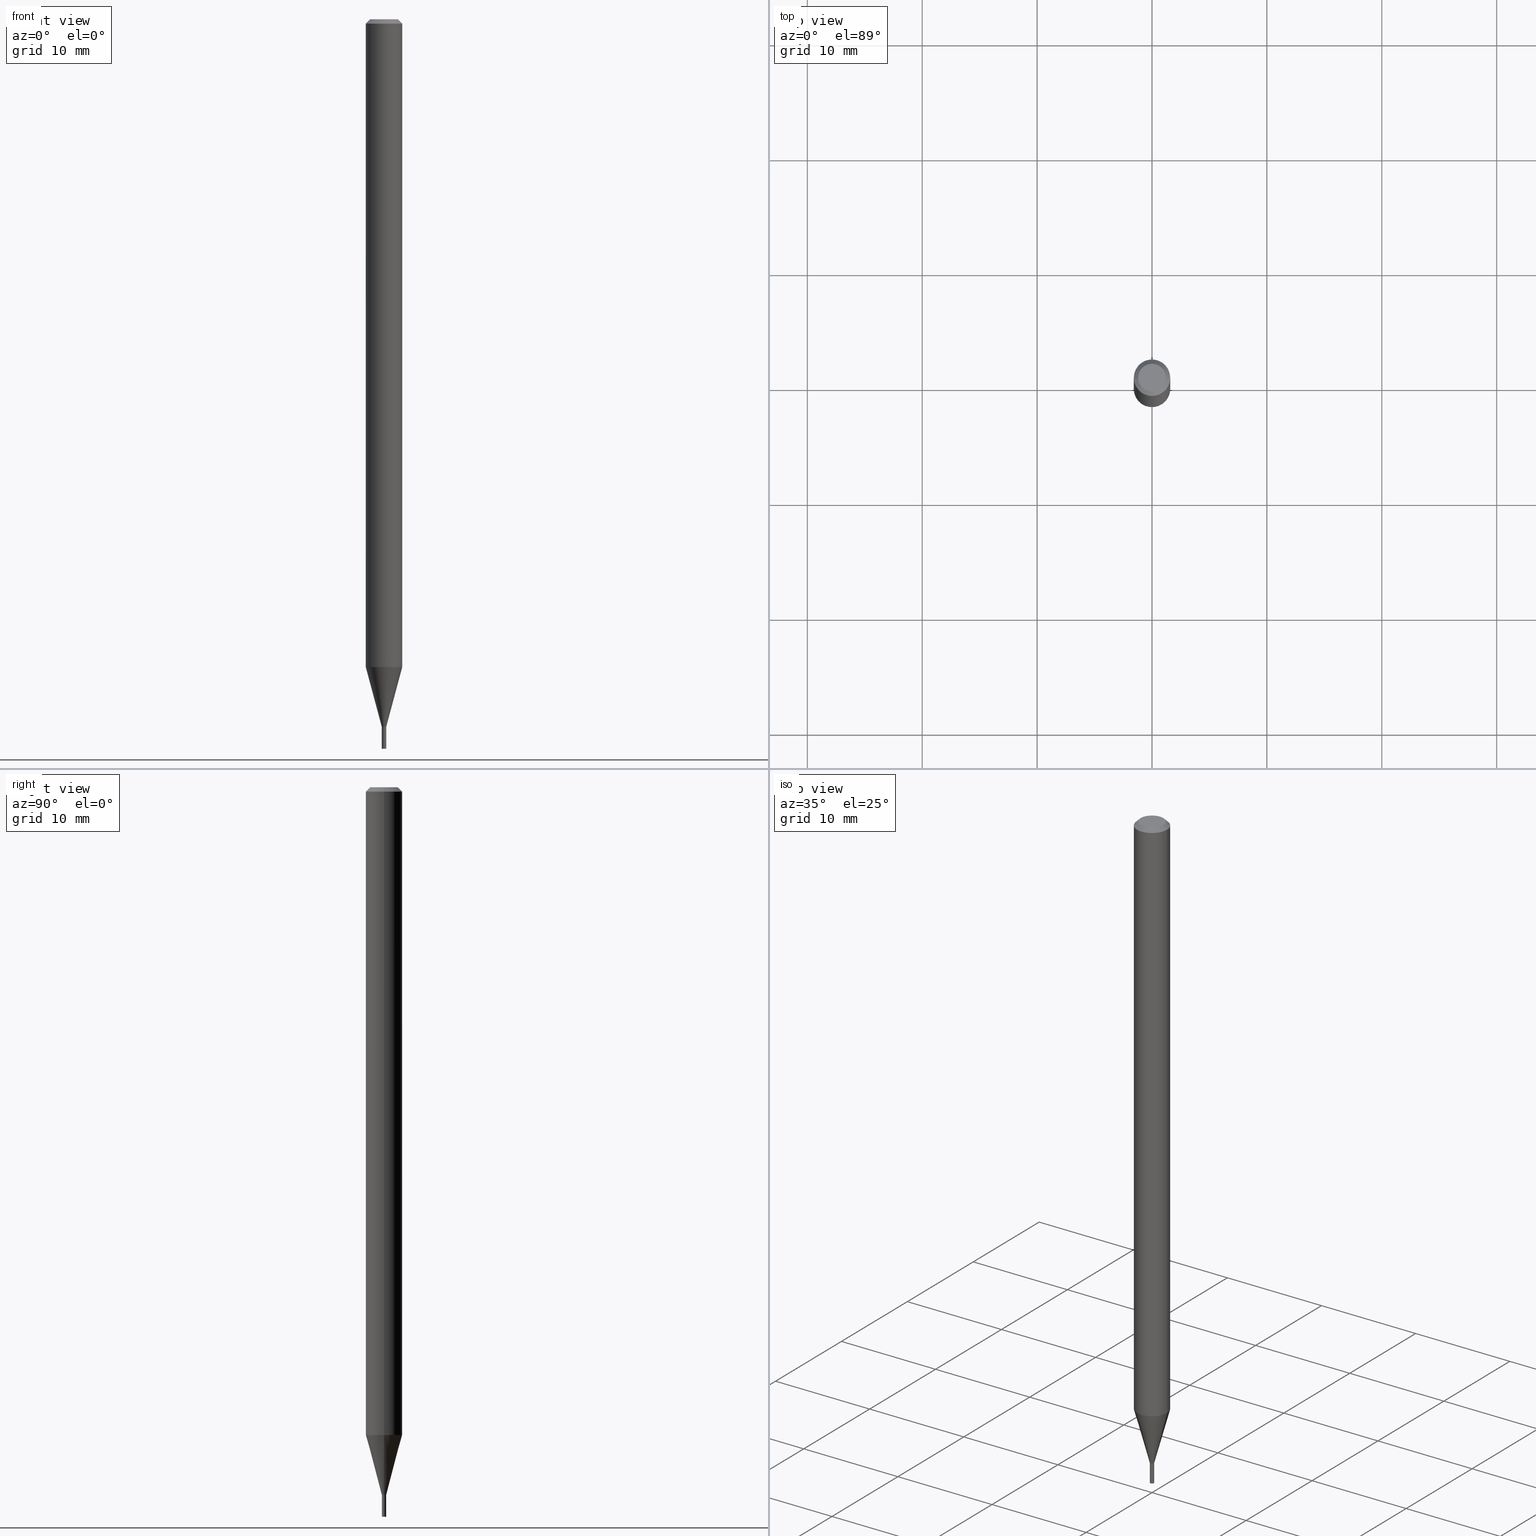
[diagram: canonical four-view strip — front | top / right | iso, engineering-drawing reading convention]
A machine part, canonical four-view strip (front | top / right | iso — engineering-drawing reading convention). The complete STEP part file that produces these views, byte-faithful:
ISO-10303-21;
HEADER;
FILE_DESCRIPTION (( 'STEP AP203' ),
    '1' );
FILE_NAME ('01228.STEP',
    '2024-03-20T00:17:09',
    ( '' ),
    ( '' ),
    'SwSTEP 2.0',
    'SolidWorks 2023',
    '' );
FILE_SCHEMA (( 'CONFIG_CONTROL_DESIGN' ));
ENDSEC;

DATA;
#1 = ORIENTED_EDGE ( 'NONE', *, *, #415, .T. ) ;
#2 = CALENDAR_DATE ( 2024, 19, 3 ) ;
#3 = CONICAL_SURFACE ( 'NONE', #172, 0.006999999999999999278, 0.7853981633974718157 ) ;
#4 = DIRECTION ( 'NONE',  ( -2.445468806185136597E-29, 3.491481338843145583E-15, 1.000000000000000000 ) ) ;
#5 = DIRECTION ( 'NONE',  ( 1.000000000000000000, -6.982962677686267499E-15, 5.108144071313017768E-29 ) ) ;
#6 = DIRECTION ( 'NONE',  ( -2.438088387897960049E-29, 3.491481338843145188E-15, 1.000000000000000000 ) ) ;
#7 = ORIENTED_EDGE ( 'NONE', *, *, #80, .F. ) ;
#8 = LOCAL_TIME ( 20, 17, 9.000000000000000000, #67 ) ;
#9 = DIRECTION ( 'NONE',  ( -2.445468806185136597E-29, 3.491481338843145583E-15, 1.000000000000000000 ) ) ;
#10 = ORIENTED_EDGE ( 'NONE', *, *, #424, .F. ) ;
#11 = DIRECTION ( 'NONE',  ( -2.445468806185136597E-29, 3.491481338843145583E-15, 1.000000000000000000 ) ) ;
#12 = EDGE_LOOP ( 'NONE', ( #216, #313, #248, #372 ) ) ;
#13 = DATE_AND_TIME ( #16, #390 ) ;
#14 =( NAMED_UNIT ( * ) PLANE_ANGLE_UNIT ( ) SI_UNIT ( $, .RADIAN. ) );
#15 = ORIENTED_EDGE ( 'NONE', *, *, #288, .F. ) ;
#16 = CALENDAR_DATE ( 2024, 19, 3 ) ;
#17 = AXIS2_PLACEMENT_3D ( 'NONE', #225, #9, #5 ) ;
#18 = VERTEX_POINT ( 'NONE', #439 ) ;
#19 = DIRECTION ( 'NONE',  ( -2.445468806185136597E-29, 3.491481338843145583E-15, 1.000000000000000000 ) ) ;
#20 = EDGE_LOOP ( 'NONE', ( #50, #311, #451, #189 ) ) ;
#21 = ADVANCED_FACE ( 'NONE', ( #404 ), #365, .F. ) ;
#22 = ADVANCED_FACE ( 'NONE', ( #301 ), #437, .T. ) ;
#23 = FACE_OUTER_BOUND ( 'NONE', #233, .T. ) ;
#24 = VERTEX_POINT ( 'NONE', #41 ) ;
#25 = CARTESIAN_POINT ( 'NONE',  ( 3.316907271900976096E-16, 0.04749999999999999362, 1.252124384068252049E-15 ) ) ;
#26 = CLOSED_SHELL ( 'NONE', ( #46, #351, #217, #185, #22, #453, #153, #432, #270, #37, #303, #403 ) ) ;
#27 = AXIS2_PLACEMENT_3D ( 'NONE', #205, #69, #287 ) ;
#28 = DIRECTION ( 'NONE',  ( -1.000000000000000000, 6.982962677686265922E-15, -4.876176775795935793E-29 ) ) ;
#29 = CARTESIAN_POINT ( 'NONE',  ( -0.006999999999999999278, -8.414455028017310105E-15, -2.425000000000000711 ) ) ;
#30 = DIRECTION ( 'NONE',  ( 1.000000000000000000, -6.982962677686266711E-15, 0.000000000000000000 ) ) ;
#31 = DIRECTION ( 'NONE',  ( -2.445468806185136597E-29, 3.491481338843145583E-15, 1.000000000000000000 ) ) ;
#32 = CC_DESIGN_DATE_AND_TIME_ASSIGNMENT ( #33, #176, ( #405 ) ) ;
#33 = DATE_AND_TIME ( #215, #8 ) ;
#34 = APPROVAL ( #106, 'UNSPECIFIED' ) ;
#35 = DIRECTION ( 'NONE',  ( -2.445468806185136597E-29, 3.491481338843145583E-15, 1.000000000000000000 ) ) ;
#36 = CIRCLE ( 'NONE', #111, 0.007499999999999920793 ) ;
#37 = ADVANCED_FACE ( 'NONE', ( #399 ), #72, .F. ) ;
#38 = LINE ( 'NONE', #148, #438 ) ;
#39 = MECHANICAL_CONTEXT ( 'NONE', #71, 'mechanical' ) ;
#40 = DIRECTION ( 'NONE',  ( 1.000000000000000000, -6.982962677686333764E-15, 0.000000000000000000 ) ) ;
#41 = CARTESIAN_POINT ( 'NONE',  ( -0.007500000000000195746, -8.411805800843198115E-15, -2.424500000000000544 ) ) ;
#42 = DIRECTION ( 'NONE',  ( -2.445468806185136877E-29, 3.491481338843145188E-15, 1.000000000000000000 ) ) ;
#43 = AXIS2_PLACEMENT_3D ( 'NONE', #280, #427, #30 ) ;
#44 = AXIS2_PLACEMENT_3D ( 'NONE', #349, #410, #383 ) ;
#45 = EDGE_LOOP ( 'NONE', ( #305, #10 ) ) ;
#46 = ADVANCED_FACE ( 'NONE', ( #147 ), #218, .F. ) ;
#47 = CYLINDRICAL_SURFACE ( 'NONE', #98, 0.007500000000000058703 ) ;
#48 = EDGE_LOOP ( 'NONE', ( #261, #95, #54, #338 ) ) ;
#49 = CARTESIAN_POINT ( 'NONE',  ( -0.04749999999999999362, 3.578768372314260303E-16, 2.835939495326600426E-15 ) ) ;
#50 = ORIENTED_EDGE ( 'NONE', *, *, #240, .T. ) ;
#51 = EDGE_CURVE ( 'NONE', #18, #75, #374, .T. ) ;
#52 = VECTOR ( 'NONE', #418, 39.37007874015748143 ) ;
#53 = CC_DESIGN_PERSON_AND_ORGANIZATION_ASSIGNMENT ( #433, #396, ( #405 ) ) ;
#54 = ORIENTED_EDGE ( 'NONE', *, *, #391, .F. ) ;
#55 = CC_DESIGN_APPROVAL ( #295, ( #323 ) ) ;
#56 = DIRECTION ( 'NONE',  ( -2.445468806185136597E-29, 3.491481338843145583E-15, 1.000000000000000000 ) ) ;
#57 = ORIENTED_EDGE ( 'NONE', *, *, #51, .T. ) ;
#58 = PERSON_AND_ORGANIZATION ( #94, #325 ) ;
#59 = DIRECTION ( 'NONE',  ( -2.445468806185136597E-29, 3.491481338843145583E-15, 1.000000000000000000 ) ) ;
#60 = DIRECTION ( 'NONE',  ( -2.445468806185136597E-29, 3.491481338843145583E-15, 1.000000000000000000 ) ) ;
#61 = AXIS2_PLACEMENT_3D ( 'NONE', #202, #449, #421 ) ;
#62 = DIRECTION ( 'NONE',  ( 1.000000000000000000, -6.982962677686267499E-15, 5.108144071313017768E-29 ) ) ;
#63 = DIRECTION ( 'NONE',  ( 1.000000000000000000, -6.982962677686266711E-15, 4.876176775795935793E-29 ) ) ;
#64 = DIRECTION ( 'NONE',  ( 1.000000000000000000, -6.982962677686266711E-15, 0.000000000000000000 ) ) ;
#65 = CONICAL_SURFACE ( 'NONE', #335, 0.006999999999999999278, 0.7853981633974718157 ) ;
#66 = CC_DESIGN_SECURITY_CLASSIFICATION ( #213, ( #323 ) ) ;
#67 = COORDINATED_UNIVERSAL_TIME_OFFSET ( 5, 0, .BEHIND. ) ;
#68 = MANIFOLD_SOLID_BREP ( 'Body-Move/Copy2[1]', #321 ) ;
#69 = DIRECTION ( 'NONE',  ( -2.445468806185136597E-29, 3.491481338843145583E-15, 1.000000000000000000 ) ) ;
#70 = APPLICATION_CONTEXT ( 'configuration controlled 3d designs of mechanical parts and assemblies' ) ;
#71 = APPLICATION_CONTEXT ( 'configuration controlled 3d designs of mechanical parts and assemblies' ) ;
#72 = PLANE ( 'NONE',  #378 ) ;
#73 = CYLINDRICAL_SURFACE ( 'NONE', #380, 0.007499999999999999722 ) ;
#74 = AXIS2_PLACEMENT_3D ( 'NONE', #135, #137, #426 ) ;
#75 = VERTEX_POINT ( 'NONE', #352 ) ;
#76 = DIRECTION ( 'NONE',  ( -2.445468806185136877E-29, 3.491481338843145188E-15, 1.000000000000000000 ) ) ;
#77 = VERTEX_POINT ( 'NONE', #423 ) ;
#78 = ORIENTED_EDGE ( 'NONE', *, *, #286, .T. ) ;
#79 = FACE_OUTER_BOUND ( 'NONE', #12, .T. ) ;
#80 = EDGE_CURVE ( 'NONE', #306, #120, #282, .T. ) ;
#81 = VECTOR ( 'NONE', #42, 39.37007874015748143 ) ;
#82 = ORIENTED_EDGE ( 'NONE', *, *, #422, .T. ) ;
#83 = FACE_OUTER_BOUND ( 'NONE', #223, .T. ) ;
#84 = ORIENTED_EDGE ( 'NONE', *, *, #373, .T. ) ;
#85 = EDGE_CURVE ( 'NONE', #199, #128, #393, .T. ) ;
#86 = ORIENTED_EDGE ( 'NONE', *, *, #170, .T. ) ;
#87 = CARTESIAN_POINT ( 'NONE',  ( 5.930261854998957144E-29, -8.466842246694628363E-15, -2.425000000000000266 ) ) ;
#88 = VECTOR ( 'NONE', #253, 39.37007874015748143 ) ;
#89 = ORIENTED_EDGE ( 'NONE', *, *, #309, .T. ) ;
#90 = DIRECTION ( 'NONE',  ( 1.000000000000000000, -6.982962677686212279E-15, 0.000000000000000000 ) ) ;
#91 = VERTEX_POINT ( 'NONE', #395 ) ;
#92 = FACE_OUTER_BOUND ( 'NONE', #367, .T. ) ;
#93 = EDGE_CURVE ( 'NONE', #128, #120, #285, .T. ) ;
#94 = PERSON ( 'UNSPECIFIED', 'UNSPECIFIED', 'UNSPECIFIED', ('UNSPECIFIED'), ('UNSPECIFIED'), ('UNSPECIFIED') ) ;
#95 = ORIENTED_EDGE ( 'NONE', *, *, #207, .T. ) ;
#96 = DATE_AND_TIME ( #204, #382 ) ;
#97 = CARTESIAN_POINT ( 'NONE',  ( 0.007500000000000058703, -5.237222008264741202E-17, 3.657132581846980659E-31 ) ) ;
#98 = AXIS2_PLACEMENT_3D ( 'NONE', #377, #413, #168 ) ;
#99 = EDGE_LOOP ( 'NONE', ( #1, #275, #7, #138 ) ) ;
#100 = SECURITY_CLASSIFICATION_LEVEL ( 'unclassified' ) ;
#101 = CARTESIAN_POINT ( 'NONE',  ( 5.929039120595864343E-29, -8.465096506025207649E-15, -2.424500000000000544 ) ) ;
#102 = EDGE_CURVE ( 'NONE', #157, #238, #279, .T. ) ;
#103 = CARTESIAN_POINT ( 'NONE',  ( -0.007499999999999920793, -8.413551541512620408E-15, -2.425000000000000266 ) ) ;
#104 = CIRCLE ( 'NONE', #43, 0.06250000000000000000 ) ;
#105 = LOCAL_TIME ( 20, 17, 9.000000000000000000, #300 ) ;
#106 = APPROVAL_STATUS ( 'not_yet_approved' ) ;
#107 = CARTESIAN_POINT ( 'NONE',  ( 6.194428952736783458E-29, -8.613054816532157721E-15, -2.500000000000000000 ) ) ;
#108 = DIRECTION ( 'NONE',  ( -2.445468806185136597E-29, 3.491481338843145583E-15, 1.000000000000000000 ) ) ;
#109 = DIRECTION ( 'NONE',  ( -0.7071067811865642261, 7.493145998870414114E-15, 0.7071067811865309194 ) ) ;
#110 = AXIS2_PLACEMENT_3D ( 'NONE', #107, #182, #291 ) ;
#111 = AXIS2_PLACEMENT_3D ( 'NONE', #87, #234, #381 ) ;
#112 = APPROVAL_PERSON_ORGANIZATION ( #58, #337, #249 ) ;
#113 = DIRECTION ( 'NONE',  ( 1.000000000000000000, -6.982962677686333764E-15, 0.000000000000000000 ) ) ;
#114 = ORIENTED_EDGE ( 'NONE', *, *, #170, .F. ) ;
#115 = DATE_AND_TIME ( #2, #105 ) ;
#116 = CC_DESIGN_PERSON_AND_ORGANIZATION_ASSIGNMENT ( #296, #400, ( #394 ) ) ;
#117 = EDGE_CURVE ( 'NONE', #91, #18, #362, .T. ) ;
#118 = FACE_OUTER_BOUND ( 'NONE', #144, .T. ) ;
#119 = DIRECTION ( 'NONE',  ( 1.000000000000000000, -6.982962677686267499E-15, 4.876176775795936353E-29 ) ) ;
#120 = VERTEX_POINT ( 'NONE', #360 ) ;
#121 = ADVANCED_BREP_SHAPE_REPRESENTATION ( '01228', ( #68, #386, #447 ), #159 ) ;
#122 = AXIS2_PLACEMENT_3D ( 'NONE', #310, #59, #450 ) ;
#123 = ORIENTED_EDGE ( 'NONE', *, *, #288, .T. ) ;
#124 = FACE_OUTER_BOUND ( 'NONE', #343, .T. ) ;
#125 = DIRECTION ( 'NONE',  ( 1.000000000000000000, -6.982962677686262766E-15, 0.000000000000000000 ) ) ;
#126 = EDGE_LOOP ( 'NONE', ( #267, #446 ) ) ;
#127 = CARTESIAN_POINT ( 'NONE',  ( 0.006999999999999999278, -8.515722985438433619E-15, -2.425000000000000711 ) ) ;
#128 = VERTEX_POINT ( 'NONE', #318 ) ;
#129 = CARTESIAN_POINT ( 'NONE',  ( 0.007500000000000195746, -8.517468726107855911E-15, -2.424500000000000544 ) ) ;
#130 = AXIS2_PLACEMENT_3D ( 'NONE', #388, #60, #169 ) ;
#131 = ORIENTED_EDGE ( 'NONE', *, *, #342, .T. ) ;
#132 = DATE_AND_TIME ( #460, #315 ) ;
#133 = ADVANCED_FACE ( 'NONE', ( #210 ), #246, .F. ) ;
#134 = CARTESIAN_POINT ( 'NONE',  ( -0.007499999999999999722, -8.544482091719238697E-15, -2.425000000000000266 ) ) ;
#135 = CARTESIAN_POINT ( 'NONE',  ( 0.000000000000000000, 0.000000000000000000, 0.000000000000000000 ) ) ;
#136 = PERSON_AND_ORGANIZATION ( #94, #325 ) ;
#137 = DIRECTION ( 'NONE',  ( -2.445468806185136597E-29, 3.491481338843145583E-15, 1.000000000000000000 ) ) ;
#138 = ORIENTED_EDGE ( 'NONE', *, *, #200, .F. ) ;
#139 = CARTESIAN_POINT ( 'NONE',  ( -0.007499999999999920793, -7.859816681046961003E-15, -2.425000000000000266 ) ) ;
#140 = CIRCLE ( 'NONE', #463, 0.06250000000000000000 ) ;
#141 = EDGE_CURVE ( 'NONE', #411, #229, #402, .T. ) ;
#142 = DIRECTION ( 'NONE',  ( -2.445468806185136877E-29, 3.491481338843145188E-15, 1.000000000000000000 ) ) ;
#143 = DIRECTION ( 'NONE',  ( -2.445468806185136597E-29, 3.491481338843145583E-15, 1.000000000000000000 ) ) ;
#144 = EDGE_LOOP ( 'NONE', ( #161, #348, #268, #82 ) ) ;
#145 = CIRCLE ( 'NONE', #408, 0.06250000000000000000 ) ;
#146 = APPROVAL_DATE_TIME ( #115, #34 ) ;
#147 = FACE_OUTER_BOUND ( 'NONE', #412, .T. ) ;
#148 = CARTESIAN_POINT ( 'NONE',  ( -0.06250000000000000000, 3.840629472727444916E-16, -0.01499999999999999944 ) ) ;
#149 = ORIENTED_EDGE ( 'NONE', *, *, #324, .T. ) ;
#150 = CARTESIAN_POINT ( 'NONE',  ( 0.000000000000000000, 0.000000000000000000, 0.000000000000000000 ) ) ;
#151 = VECTOR ( 'NONE', #76, 39.37007874015748143 ) ;
#152 = APPLICATION_PROTOCOL_DEFINITION ( 'international standard', 'config_control_design', 1994, #70 ) ;
#153 = ADVANCED_FACE ( 'NONE', ( #92 ), #459, .T. ) ;
#154 = CONICAL_SURFACE ( 'NONE', #363, 0.007499999999999920793, 0.2617993877991506846 ) ;
#155 = EDGE_CURVE ( 'NONE', #128, #77, #140, .T. ) ;
#156 = LINE ( 'NONE', #406, #211 ) ;
#157 = VERTEX_POINT ( 'NONE', #320 ) ;
#158 = ORIENTED_EDGE ( 'NONE', *, *, #373, .F. ) ;
#159 =( GEOMETRIC_REPRESENTATION_CONTEXT ( 3 ) GLOBAL_UNCERTAINTY_ASSIGNED_CONTEXT ( ( #262 ) ) GLOBAL_UNIT_ASSIGNED_CONTEXT ( ( #339, #14, #444 ) ) REPRESENTATION_CONTEXT ( 'NONE', 'WORKASPACE' ) );
#160 = CARTESIAN_POINT ( 'NONE',  ( 5.930261854998957144E-29, -8.466842246694629941E-15, -2.425000000000000711 ) ) ;
#161 = ORIENTED_EDGE ( 'NONE', *, *, #324, .F. ) ;
#162 = ORIENTED_EDGE ( 'NONE', *, *, #155, .T. ) ;
#163 = COORDINATED_UNIVERSAL_TIME_OFFSET ( 5, 0, .BEHIND. ) ;
#164 = ORIENTED_EDGE ( 'NONE', *, *, #342, .F. ) ;
#165 = CARTESIAN_POINT ( 'NONE',  ( 0.007499999999999920793, -8.519214466777275048E-15, -2.425000000000000266 ) ) ;
#166 = ADVANCED_FACE ( 'NONE', ( #428 ), #243, .T. ) ;
#167 = AXIS2_PLACEMENT_3D ( 'NONE', #334, #435, #361 ) ;
#168 = DIRECTION ( 'NONE',  ( 1.000000000000000000, -6.982962677686266711E-15, 4.876176775795935793E-29 ) ) ;
#169 = DIRECTION ( 'NONE',  ( 1.000000000000000000, -6.982962677686267499E-15, 4.876176775795936353E-29 ) ) ;
#170 = EDGE_CURVE ( 'NONE', #120, #306, #104, .T. ) ;
#171 = CARTESIAN_POINT ( 'NONE',  ( 0.000000000000000000, 0.000000000000000000, 0.000000000000000000 ) ) ;
#172 = AXIS2_PLACEMENT_3D ( 'NONE', #222, #35, #40 ) ;
#173 = LINE ( 'NONE', #326, #151 ) ;
#174 = AXIS2_PLACEMENT_3D ( 'NONE', #193, #56, #190 ) ;
#175 = CARTESIAN_POINT ( 'NONE',  ( 5.237222008270629925E-17, 0.007499999999991533405, -2.425000000000000266 ) ) ;
#176 = DATE_TIME_ROLE ( 'creation_date' ) ;
#177 = DIRECTION ( 'NONE',  ( -2.445468806185136597E-29, 3.491481338843145583E-15, 1.000000000000000000 ) ) ;
#178 = ORIENTED_EDGE ( 'NONE', *, *, #80, .T. ) ;
#179 = EDGE_CURVE ( 'NONE', #24, #238, #425, .T. ) ;
#180 = ORIENTED_EDGE ( 'NONE', *, *, #179, .T. ) ;
#181 = AXIS2_PLACEMENT_3D ( 'NONE', #356, #177, #64 ) ;
#182 = DIRECTION ( 'NONE',  ( -2.438088387897960049E-29, 3.491481338843145188E-15, 1.000000000000000000 ) ) ;
#183 = DIRECTION ( 'NONE',  ( 1.000000000000000000, -6.982962677686268288E-15, 0.000000000000000000 ) ) ;
#184 = DIRECTION ( 'NONE',  ( 1.000000000000000000, 0.000000000000000000, 0.000000000000000000 ) ) ;
#185 = ADVANCED_FACE ( 'NONE', ( #209 ), #354, .T. ) ;
#186 = AXIS2_PLACEMENT_3D ( 'NONE', #434, #108, #188 ) ;
#187 = DIRECTION ( 'NONE',  ( 1.000000000000000000, -6.982962677686265922E-15, 4.876176775795935793E-29 ) ) ;
#188 = DIRECTION ( 'NONE',  ( 1.000000000000000000, -6.982962677686212279E-15, 0.000000000000000000 ) ) ;
#189 = ORIENTED_EDGE ( 'NONE', *, *, #452, .F. ) ;
#190 = DIRECTION ( 'NONE',  ( 1.000000000000000000, -6.982962677686268288E-15, 0.000000000000000000 ) ) ;
#191 = EDGE_LOOP ( 'NONE', ( #158, #123, #178, #384 ) ) ;
#192 = CARTESIAN_POINT ( 'NONE',  ( 0.007499999999999999722, -5.237222008264700526E-17, 3.657132581846952195E-31 ) ) ;
#193 = CARTESIAN_POINT ( 'NONE',  ( 6.113672015462842613E-29, -8.728703347107864943E-15, -2.500000000000000000 ) ) ;
#194 = ORIENTED_EDGE ( 'NONE', *, *, #207, .F. ) ;
#195 = VECTOR ( 'NONE', #341, 39.37007874015748143 ) ;
#196 = VERTEX_POINT ( 'NONE', #29 ) ;
#197 = FACE_OUTER_BOUND ( 'NONE', #191, .T. ) ;
#198 =( LENGTH_UNIT ( ) NAMED_UNIT ( * ) SI_UNIT ( $, .METRE. ) );
#199 = VERTEX_POINT ( 'NONE', #139 ) ;
#200 = EDGE_CURVE ( 'NONE', #77, #306, #173, .T. ) ;
#201 = LINE ( 'NONE', #127, #345 ) ;
#202 = CARTESIAN_POINT ( 'NONE',  ( 5.930261854998957144E-29, -8.466842246694629941E-15, -2.425000000000000711 ) ) ;
#203 = VECTOR ( 'NONE', #227, 39.37007874015748854 ) ;
#204 = CALENDAR_DATE ( 2024, 19, 3 ) ;
#205 = CARTESIAN_POINT ( 'NONE',  ( 6.113672015462842613E-29, -8.728703347107864943E-15, -2.500000000000000000 ) ) ;
#206 = DIRECTION ( 'NONE',  ( -1.000000000000000000, 6.982962677686266711E-15, 0.000000000000000000 ) ) ;
#207 = EDGE_CURVE ( 'NONE', #91, #409, #241, .T. ) ;
#208 = PERSON_AND_ORGANIZATION ( #94, #325 ) ;
#209 = FACE_OUTER_BOUND ( 'NONE', #99, .T. ) ;
#210 = FACE_OUTER_BOUND ( 'NONE', #264, .T. ) ;
#211 = VECTOR ( 'NONE', #109, 39.37007874015748143 ) ;
#212 = DIRECTION ( 'NONE',  ( 2.438088387897960049E-29, -3.491481338843145188E-15, -1.000000000000000000 ) ) ;
#213 = SECURITY_CLASSIFICATION ( '', '', #100 ) ;
#214 = APPROVAL_STATUS ( 'not_yet_approved' ) ;
#215 = CALENDAR_DATE ( 2024, 19, 3 ) ;
#216 = ORIENTED_EDGE ( 'NONE', *, *, #355, .F. ) ;
#217 = ADVANCED_FACE ( 'NONE', ( #197 ), #322, .T. ) ;
#218 = CYLINDRICAL_SURFACE ( 'NONE', #236, 0.007500000000000058703 ) ;
#219 = CARTESIAN_POINT ( 'NONE',  ( 0.006999999999999999278, -8.515722985438433619E-15, -2.425000000000000711 ) ) ;
#220 = ORIENTED_EDGE ( 'NONE', *, *, #102, .F. ) ;
#221 = VECTOR ( 'NONE', #319, 39.37007874015748143 ) ;
#222 = CARTESIAN_POINT ( 'NONE',  ( 5.930261854998957144E-29, -8.466842246694629941E-15, -2.425000000000000711 ) ) ;
#223 = EDGE_LOOP ( 'NONE', ( #448, #242, #78, #379 ) ) ;
#224 = DIRECTION ( 'NONE',  ( 0.000000000000000000, 0.000000000000000000, 1.000000000000000000 ) ) ;
#225 = CARTESIAN_POINT ( 'NONE',  ( -6.935201572049625974E-44, 9.901629826021081830E-30, 2.835939495326602793E-15 ) ) ;
#226 = EDGE_LOOP ( 'NONE', ( #194, #375, #57, #164 ) ) ;
#227 = DIRECTION ( 'NONE',  ( 0.7071067811864806263, -7.319954787623028853E-15, -0.7071067811866141861 ) ) ;
#228 = AXIS2_PLACEMENT_3D ( 'NONE', #302, #369, #183 ) ;
#229 = VERTEX_POINT ( 'NONE', #307 ) ;
#230 = CARTESIAN_POINT ( 'NONE',  ( 5.930261854998957144E-29, -8.466842246694628363E-15, -2.425000000000000266 ) ) ;
#231 = EDGE_LOOP ( 'NONE', ( #340, #416, #271, #443 ) ) ;
#232 = DIRECTION ( 'NONE',  ( -1.000000000000000000, 6.982962677686265922E-15, -4.876176775795935793E-29 ) ) ;
#233 = EDGE_LOOP ( 'NONE', ( #15, #347, #89, #86 ) ) ;
#234 = DIRECTION ( 'NONE',  ( -2.445468806185136597E-29, 3.491481338843145583E-15, 1.000000000000000000 ) ) ;
#235 = AXIS2_PLACEMENT_3D ( 'NONE', #401, #368, #255 ) ;
#236 = AXIS2_PLACEMENT_3D ( 'NONE', #332, #4, #263 ) ;
#237 = DIRECTION ( 'NONE',  ( -2.445468806185136597E-29, 3.491481338843145583E-15, 1.000000000000000000 ) ) ;
#238 = VERTEX_POINT ( 'NONE', #129 ) ;
#239 = COORDINATED_UNIVERSAL_TIME_OFFSET ( 5, 0, .BEHIND. ) ;
#240 = EDGE_CURVE ( 'NONE', #331, #196, #292, .T. ) ;
#241 = LINE ( 'NONE', #458, #52 ) ;
#242 = ORIENTED_EDGE ( 'NONE', *, *, #387, .T. ) ;
#243 = CYLINDRICAL_SURFACE ( 'NONE', #130, 0.007499999999999999722 ) ;
#244 = AXIS2_PLACEMENT_3D ( 'NONE', #312, #269, #206 ) ;
#245 = DIMENSIONAL_EXPONENTS ( 1.000000000000000000, 0.000000000000000000, 0.000000000000000000, 0.000000000000000000, 0.000000000000000000, 0.000000000000000000, 0.000000000000000000 ) ;
#246 = PLANE ( 'NONE',  #357 ) ;
#247 = PRODUCT_DEFINITION_SHAPE ( 'NONE', 'NONE',  #405 ) ;
#248 = ORIENTED_EDGE ( 'NONE', *, *, #452, .T. ) ;
#249 = APPROVAL_ROLE ( '' ) ;
#250 = DIRECTION ( 'NONE',  ( 1.000000000000000000, -6.982962677686214646E-15, 0.000000000000000000 ) ) ;
#251 = DIRECTION ( 'NONE',  ( -2.445468806185136877E-29, 3.491481338843145188E-15, 1.000000000000000000 ) ) ;
#252 = EDGE_CURVE ( 'NONE', #157, #199, #36, .T. ) ;
#253 = DIRECTION ( 'NONE',  ( -0.2588190451025219607, 5.211531920934553408E-15, 0.9659258262890679791 ) ) ;
#254 = PERSON_AND_ORGANIZATION ( #94, #325 ) ;
#255 = DIRECTION ( 'NONE',  ( 1.000000000000000000, -6.982962677686212279E-15, 0.000000000000000000 ) ) ;
#256 = CARTESIAN_POINT ( 'NONE',  ( 0.06250000000000000000, -4.811533449433679005E-16, -0.01499999999999999944 ) ) ;
#257 = APPLICATION_PROTOCOL_DEFINITION ( 'international standard', 'config_control_design', 1994, #71 ) ;
#258 = CC_DESIGN_DATE_AND_TIME_ASSIGNMENT ( #132, #385, ( #213 ) ) ;
#259 = APPROVAL_PERSON_ORGANIZATION ( #329, #295, #398 ) ;
#260 = CARTESIAN_POINT ( 'NONE',  ( 5.930261854998957144E-29, -8.466842246694629941E-15, -2.425000000000000711 ) ) ;
#261 = ORIENTED_EDGE ( 'NONE', *, *, #466, .T. ) ;
#262 = UNCERTAINTY_MEASURE_WITH_UNIT (LENGTH_MEASURE( 1.000000000000000082E-05 ), #339, 'distance_accuracy_value', 'NONE');
#263 = DIRECTION ( 'NONE',  ( 1.000000000000000000, -6.982962677686266711E-15, 4.876176775795935793E-29 ) ) ;
#264 = EDGE_LOOP ( 'NONE', ( #407, #131 ) ) ;
#265 = CIRCLE ( 'NONE', #17, 0.04749999999999999362 ) ;
#266 = DIRECTION ( 'NONE',  ( 1.000000000000000000, -6.982962677686333764E-15, 0.000000000000000000 ) ) ;
#267 = ORIENTED_EDGE ( 'NONE', *, *, #466, .F. ) ;
#268 = ORIENTED_EDGE ( 'NONE', *, *, #102, .T. ) ;
#269 = DIRECTION ( 'NONE',  ( 2.445468806185136597E-29, -3.491481338843145583E-15, -1.000000000000000000 ) ) ;
#270 = ADVANCED_FACE ( 'NONE', ( #124 ), #350, .F. ) ;
#271 = ORIENTED_EDGE ( 'NONE', *, *, #415, .F. ) ;
#272 = DIRECTION ( 'NONE',  ( 2.438088387897960049E-29, -3.491481338843145188E-15, -1.000000000000000000 ) ) ;
#273 = AXIS2_PLACEMENT_3D ( 'NONE', #171, #464, #63 ) ;
#274 = CC_DESIGN_APPROVAL ( #337, ( #213 ) ) ;
#275 = ORIENTED_EDGE ( 'NONE', *, *, #93, .T. ) ;
#276 = APPROVAL_STATUS ( 'not_yet_approved' ) ;
#277 = DIRECTION ( 'NONE',  ( -2.445468806185136597E-29, 3.491481338843145583E-15, 1.000000000000000000 ) ) ;
#278 = PERSON_AND_ORGANIZATION ( #94, #325 ) ;
#279 = LINE ( 'NONE', #97, #314 ) ;
#280 = CARTESIAN_POINT ( 'NONE',  ( 3.668203209277705088E-31, -5.237222008264718399E-17, -0.01499999999999999944 ) ) ;
#281 = LINE ( 'NONE', #256, #203 ) ;
#282 = CIRCLE ( 'NONE', #181, 0.06250000000000000000 ) ;
#283 = CC_DESIGN_APPROVAL ( #34, ( #405 ) ) ;
#284 = SHAPE_DEFINITION_REPRESENTATION ( #247, #121 ) ;
#285 = LINE ( 'NONE', #461, #456 ) ;
#286 = EDGE_CURVE ( 'NONE', #157, #77, #376, .T. ) ;
#287 = DIRECTION ( 'NONE',  ( 1.000000000000000000, -6.982962677686268288E-15, 0.000000000000000000 ) ) ;
#288 = EDGE_CURVE ( 'NONE', #229, #306, #281, .T. ) ;
#289 = ADVANCED_FACE ( 'NONE', ( #442 ), #73, .T. ) ;
#290 = DIRECTION ( 'NONE',  ( 1.000000000000000000, -6.982962677686262766E-15, 0.000000000000000000 ) ) ;
#291 = DIRECTION ( 'NONE',  ( 1.000000000000000000, -6.982962677686265922E-15, 4.876176775795935793E-29 ) ) ;
#292 = CIRCLE ( 'NONE', #61, 0.006999999999999999278 ) ;
#293 = APPROVAL_ROLE ( '' ) ;
#294 = CARTESIAN_POINT ( 'NONE',  ( -0.007500000000000058703, 5.329070518200793105E-17, -3.689201317691208168E-31 ) ) ;
#295 = APPROVAL ( #214, 'UNSPECIFIED' ) ;
#296 = PERSON_AND_ORGANIZATION ( #94, #325 ) ;
#297 = ORIENTED_EDGE ( 'NONE', *, *, #93, .F. ) ;
#298 = FACE_OUTER_BOUND ( 'NONE', #20, .T. ) ;
#299 = CIRCLE ( 'NONE', #167, 0.007499999999999999722 ) ;
#300 = COORDINATED_UNIVERSAL_TIME_OFFSET ( 5, 0, .BEHIND. ) ;
#301 = FACE_OUTER_BOUND ( 'NONE', #231, .T. ) ;
#302 = CARTESIAN_POINT ( 'NONE',  ( 5.930261854998957144E-29, -8.466842246694628363E-15, -2.425000000000000266 ) ) ;
#303 = ADVANCED_FACE ( 'NONE', ( #79 ), #3, .T. ) ;
#304 = LINE ( 'NONE', #294, #81 ) ;
#305 = ORIENTED_EDGE ( 'NONE', *, *, #240, .F. ) ;
#306 = VERTEX_POINT ( 'NONE', #440 ) ;
#307 = CARTESIAN_POINT ( 'NONE',  ( 0.04749999999999999362, -4.035134999187529319E-16, 2.835939495326605554E-15 ) ) ;
#308 = ORIENTED_EDGE ( 'NONE', *, *, #200, .T. ) ;
#309 = EDGE_CURVE ( 'NONE', #411, #120, #38, .T. ) ;
#310 = CARTESIAN_POINT ( 'NONE',  ( 5.929039120595864343E-29, -8.465096506025207649E-15, -2.424500000000000544 ) ) ;
#311 = ORIENTED_EDGE ( 'NONE', *, *, #355, .T. ) ;
#312 = CARTESIAN_POINT ( 'NONE',  ( 3.668203209277705088E-31, -5.237222008264718399E-17, -0.01499999999999999944 ) ) ;
#313 = ORIENTED_EDGE ( 'NONE', *, *, #424, .T. ) ;
#314 = VECTOR ( 'NONE', #251, 39.37007874015748143 ) ;
#315 = LOCAL_TIME ( 20, 17, 9.000000000000000000, #239 ) ;
#316 = CARTESIAN_POINT ( 'NONE',  ( 5.428298094183532737E-29, -7.750171030431364214E-15, -2.219737205583712569 ) ) ;
#317 = PERSON_AND_ORGANIZATION_ROLE ( 'creator' ) ;
#318 = CARTESIAN_POINT ( 'NONE',  ( -0.06250000000000000000, -7.306081820581300020E-15, -2.219737205583712569 ) ) ;
#319 = DIRECTION ( 'NONE',  ( 0.2588190451025219607, 1.565188264969617432E-15, 0.9659258262890679791 ) ) ;
#320 = CARTESIAN_POINT ( 'NONE',  ( 0.007499999999999920793, -8.519214466777275048E-15, -2.425000000000000266 ) ) ;
#321 = CLOSED_SHELL ( 'NONE', ( #166, #21, #289, #133 ) ) ;
#322 = CONICAL_SURFACE ( 'NONE', #244, 0.06250000000000000000, 0.7853981633973537990 ) ;
#323 = PRODUCT_DEFINITION_FORMATION_WITH_SPECIFIED_SOURCE ( 'ANY', '', #394, .NOT_KNOWN. ) ;
#324 = EDGE_CURVE ( 'NONE', #199, #24, #304, .T. ) ;
#325 = ORGANIZATION ( 'UNSPECIFIED', 'UNSPECIFIED', '' ) ;
#326 = CARTESIAN_POINT ( 'NONE',  ( 0.06250000000000000000, -4.364351673553916694E-16, 3.047610484872459871E-30 ) ) ;
#327 = CC_DESIGN_PERSON_AND_ORGANIZATION_ASSIGNMENT ( #136, #419, ( #213 ) ) ;
#328 = PRODUCT_RELATED_PRODUCT_CATEGORY ( 'detail', '', ( #394 ) ) ;
#329 = PERSON_AND_ORGANIZATION ( #94, #325 ) ;
#330 = CARTESIAN_POINT ( 'NONE',  ( -6.935201572049625974E-44, 9.901629826021081830E-30, 2.835939495326602793E-15 ) ) ;
#331 = VERTEX_POINT ( 'NONE', #219 ) ;
#332 = CARTESIAN_POINT ( 'NONE',  ( 0.000000000000000000, 0.000000000000000000, 0.000000000000000000 ) ) ;
#333 = CIRCLE ( 'NONE', #122, 0.007500000000000195746 ) ;
#334 = CARTESIAN_POINT ( 'NONE',  ( 5.930261854998957144E-29, -8.466842246694628363E-15, -2.425000000000000266 ) ) ;
#335 = AXIS2_PLACEMENT_3D ( 'NONE', #260, #364, #113 ) ;
#336 = CIRCLE ( 'NONE', #174, 0.007499999999999999722 ) ;
#337 = APPROVAL ( #276, 'UNSPECIFIED' ) ;
#338 = ORIENTED_EDGE ( 'NONE', *, *, #51, .F. ) ;
#339 =( CONVERSION_BASED_UNIT ( 'INCH', #371 ) LENGTH_UNIT ( ) NAMED_UNIT ( #245 ) );
#340 = ORIENTED_EDGE ( 'NONE', *, *, #252, .T. ) ;
#341 = DIRECTION ( 'NONE',  ( -2.445468806185136877E-29, 3.491481338843145188E-15, 1.000000000000000000 ) ) ;
#342 = EDGE_CURVE ( 'NONE', #409, #75, #299, .T. ) ;
#343 = EDGE_LOOP ( 'NONE', ( #454, #84 ) ) ;
#344 = AXIS2_PLACEMENT_3D ( 'NONE', #330, #143, #62 ) ;
#345 = VECTOR ( 'NONE', #457, 39.37007874015748143 ) ;
#346 = DESIGN_CONTEXT ( 'detailed design', #70, 'design' ) ;
#347 = ORIENTED_EDGE ( 'NONE', *, *, #141, .F. ) ;
#348 = ORIENTED_EDGE ( 'NONE', *, *, #252, .F. ) ;
#349 = CARTESIAN_POINT ( 'NONE',  ( 3.668203209277705088E-31, -5.237222008264718399E-17, -0.01499999999999999944 ) ) ;
#350 = PLANE ( 'NONE',  #370 ) ;
#351 = ADVANCED_FACE ( 'NONE', ( #298 ), #65, .T. ) ;
#352 = CARTESIAN_POINT ( 'NONE',  ( 0.007499999999999999722, -8.519214466777275048E-15, -2.425000000000000266 ) ) ;
#353 = APPROVAL_DATE_TIME ( #13, #295 ) ;
#354 = CYLINDRICAL_SURFACE ( 'NONE', #273, 0.06250000000000000000 ) ;
#355 = EDGE_CURVE ( 'NONE', #196, #24, #156, .T. ) ;
#356 = CARTESIAN_POINT ( 'NONE',  ( 3.668203209277705088E-31, -5.237222008264718399E-17, -0.01499999999999999944 ) ) ;
#357 = AXIS2_PLACEMENT_3D ( 'NONE', #175, #212, #28 ) ;
#358 = CONICAL_SURFACE ( 'NONE', #44, 0.06250000000000000000, 0.7853981633973537990 ) ;
#359 = CARTESIAN_POINT ( 'NONE',  ( 5.428298094183532737E-29, -7.750171030431364214E-15, -2.219737205583712569 ) ) ;
#360 = CARTESIAN_POINT ( 'NONE',  ( -0.06250000000000000000, -3.457182415406943227E-15, -0.01499999999999999944 ) ) ;
#361 = DIRECTION ( 'NONE',  ( 1.000000000000000000, -6.982962677686268288E-15, 0.000000000000000000 ) ) ;
#362 = CIRCLE ( 'NONE', #27, 0.007499999999999999722 ) ;
#363 = AXIS2_PLACEMENT_3D ( 'NONE', #230, #277, #90 ) ;
#364 = DIRECTION ( 'NONE',  ( -2.445468806185136597E-29, 3.491481338843145583E-15, 1.000000000000000000 ) ) ;
#365 = PLANE ( 'NONE',  #110 ) ;
#366 = DIRECTION ( 'NONE',  ( -0.7071067811864806263, 2.468850131081556552E-15, -0.7071067811866141861 ) ) ;
#367 = EDGE_LOOP ( 'NONE', ( #297, #162, #308, #114 ) ) ;
#368 = DIRECTION ( 'NONE',  ( -2.445468806185136597E-29, 3.491481338843145583E-15, 1.000000000000000000 ) ) ;
#369 = DIRECTION ( 'NONE',  ( -2.445468806185136597E-29, 3.491481338843145583E-15, 1.000000000000000000 ) ) ;
#370 = AXIS2_PLACEMENT_3D ( 'NONE', #25, #272, #232 ) ;
#371 = LENGTH_MEASURE_WITH_UNIT ( LENGTH_MEASURE( 0.02539999999999999897 ), #198 );
#372 = ORIENTED_EDGE ( 'NONE', *, *, #179, .F. ) ;
#373 = EDGE_CURVE ( 'NONE', #229, #411, #265, .T. ) ;
#374 = LINE ( 'NONE', #192, #195 ) ;
#375 = ORIENTED_EDGE ( 'NONE', *, *, #117, .T. ) ;
#376 = LINE ( 'NONE', #165, #221 ) ;
#377 = CARTESIAN_POINT ( 'NONE',  ( 0.000000000000000000, 0.000000000000000000, 0.000000000000000000 ) ) ;
#378 = AXIS2_PLACEMENT_3D ( 'NONE', #441, #6, #187 ) ;
#379 = ORIENTED_EDGE ( 'NONE', *, *, #155, .F. ) ;
#380 = AXIS2_PLACEMENT_3D ( 'NONE', #150, #11, #119 ) ;
#381 = DIRECTION ( 'NONE',  ( 1.000000000000000000, -6.982962677686212279E-15, 0.000000000000000000 ) ) ;
#382 = LOCAL_TIME ( 20, 17, 9.000000000000000000, #163 ) ;
#383 = DIRECTION ( 'NONE',  ( -1.000000000000000000, 6.982962677686266711E-15, 0.000000000000000000 ) ) ;
#384 = ORIENTED_EDGE ( 'NONE', *, *, #309, .F. ) ;
#385 = DATE_TIME_ROLE ( 'classification_date' ) ;
#386 = MANIFOLD_SOLID_BREP ( 'Body-Move/Copy2[2]', #26 ) ;
#387 = EDGE_CURVE ( 'NONE', #199, #157, #397, .T. ) ;
#388 = CARTESIAN_POINT ( 'NONE',  ( 0.000000000000000000, 0.000000000000000000, 0.000000000000000000 ) ) ;
#389 = CIRCLE ( 'NONE', #445, 0.006999999999999999278 ) ;
#390 = LOCAL_TIME ( 20, 17, 9.000000000000000000, #465 ) ;
#391 = EDGE_CURVE ( 'NONE', #75, #409, #430, .T. ) ;
#392 = APPROVAL_DATE_TIME ( #96, #337 ) ;
#393 = LINE ( 'NONE', #103, #88 ) ;
#394 = PRODUCT ( '01228', '01228', '', ( #39 ) ) ;
#395 = CARTESIAN_POINT ( 'NONE',  ( -0.007499999999999999722, -8.544482091719238697E-15, -2.500000000000000000 ) ) ;
#396 = PERSON_AND_ORGANIZATION_ROLE ( 'creator' ) ;
#397 = CIRCLE ( 'NONE', #186, 0.007499999999999920793 ) ;
#398 = APPROVAL_ROLE ( '' ) ;
#399 = FACE_OUTER_BOUND ( 'NONE', #45, .T. ) ;
#400 = PERSON_AND_ORGANIZATION_ROLE ( 'design_owner' ) ;
#401 = CARTESIAN_POINT ( 'NONE',  ( 5.930261854998957144E-29, -8.466842246694628363E-15, -2.425000000000000266 ) ) ;
#402 = CIRCLE ( 'NONE', #344, 0.04749999999999999362 ) ;
#403 = ADVANCED_FACE ( 'NONE', ( #118 ), #47, .F. ) ;
#404 = FACE_OUTER_BOUND ( 'NONE', #126, .T. ) ;
#405 = PRODUCT_DEFINITION ( 'UNKNOWN', '', #323, #346 ) ;
#406 = CARTESIAN_POINT ( 'NONE',  ( -0.006999999999999999278, -8.417104255191422095E-15, -2.425000000000000711 ) ) ;
#407 = ORIENTED_EDGE ( 'NONE', *, *, #391, .T. ) ;
#408 = AXIS2_PLACEMENT_3D ( 'NONE', #316, #19, #125 ) ;
#409 = VERTEX_POINT ( 'NONE', #134 ) ;
#410 = DIRECTION ( 'NONE',  ( 2.445468806185136597E-29, -3.491481338843145583E-15, -1.000000000000000000 ) ) ;
#411 = VERTEX_POINT ( 'NONE', #49 ) ;
#412 = EDGE_LOOP ( 'NONE', ( #414, #149, #180, #220 ) ) ;
#413 = DIRECTION ( 'NONE',  ( -2.445468806185136597E-29, 3.491481338843145583E-15, 1.000000000000000000 ) ) ;
#414 = ORIENTED_EDGE ( 'NONE', *, *, #387, .F. ) ;
#415 = EDGE_CURVE ( 'NONE', #77, #128, #145, .T. ) ;
#416 = ORIENTED_EDGE ( 'NONE', *, *, #85, .T. ) ;
#417 = CC_DESIGN_PERSON_AND_ORGANIZATION_ASSIGNMENT ( #208, #455, ( #323 ) ) ;
#418 = DIRECTION ( 'NONE',  ( -2.445468806185136877E-29, 3.491481338843145188E-15, 1.000000000000000000 ) ) ;
#419 = PERSON_AND_ORGANIZATION_ROLE ( 'classification_officer' ) ;
#420 = DIRECTION ( 'NONE',  ( -2.445468806185136597E-29, 3.491481338843145583E-15, 1.000000000000000000 ) ) ;
#421 = DIRECTION ( 'NONE',  ( 1.000000000000000000, -6.982962677686333764E-15, 0.000000000000000000 ) ) ;
#422 = EDGE_CURVE ( 'NONE', #238, #24, #333, .T. ) ;
#423 = CARTESIAN_POINT ( 'NONE',  ( 0.06250000000000000000, -8.186606197786754305E-15, -2.219737205583712569 ) ) ;
#424 = EDGE_CURVE ( 'NONE', #196, #331, #389, .T. ) ;
#425 = CIRCLE ( 'NONE', #462, 0.007500000000000195746 ) ;
#426 = DIRECTION ( 'NONE',  ( 1.000000000000000000, -6.982962677686266711E-15, 4.876176775795935793E-29 ) ) ;
#427 = DIRECTION ( 'NONE',  ( -2.445468806185136597E-29, 3.491481338843145583E-15, 1.000000000000000000 ) ) ;
#428 = FACE_OUTER_BOUND ( 'NONE', #48, .T. ) ;
#429 = CARTESIAN_POINT ( 'NONE',  ( 0.000000000000000000, 0.000000000000000000, 0.000000000000000000 ) ) ;
#430 = CIRCLE ( 'NONE', #228, 0.007499999999999999722 ) ;
#431 = APPROVAL_PERSON_ORGANIZATION ( #254, #34, #293 ) ;
#432 = ADVANCED_FACE ( 'NONE', ( #23 ), #358, .T. ) ;
#433 = PERSON_AND_ORGANIZATION ( #94, #325 ) ;
#434 = CARTESIAN_POINT ( 'NONE',  ( 5.930261854998957144E-29, -8.466842246694628363E-15, -2.425000000000000266 ) ) ;
#435 = DIRECTION ( 'NONE',  ( -2.445468806185136597E-29, 3.491481338843145583E-15, 1.000000000000000000 ) ) ;
#436 = CC_DESIGN_PERSON_AND_ORGANIZATION_ASSIGNMENT ( #278, #317, ( #323 ) ) ;
#437 = CONICAL_SURFACE ( 'NONE', #235, 0.007499999999999920793, 0.2617993877991506846 ) ;
#438 = VECTOR ( 'NONE', #366, 39.37007874015748854 ) ;
#439 = CARTESIAN_POINT ( 'NONE',  ( 0.007499999999999999722, -8.781075567190511627E-15, -2.500000000000000000 ) ) ;
#440 = CARTESIAN_POINT ( 'NONE',  ( 0.06250000000000000000, -4.888073874380388472E-16, -0.01499999999999999944 ) ) ;
#441 = CARTESIAN_POINT ( 'NONE',  ( 5.930261854998957144E-29, -8.466842246694629941E-15, -2.425000000000000711 ) ) ;
#442 = FACE_OUTER_BOUND ( 'NONE', #226, .T. ) ;
#443 = ORIENTED_EDGE ( 'NONE', *, *, #286, .F. ) ;
#444 =( NAMED_UNIT ( * ) SI_UNIT ( $, .STERADIAN. ) SOLID_ANGLE_UNIT ( ) );
#445 = AXIS2_PLACEMENT_3D ( 'NONE', #160, #237, #266 ) ;
#446 = ORIENTED_EDGE ( 'NONE', *, *, #117, .F. ) ;
#447 = AXIS2_PLACEMENT_3D ( 'NONE', #429, #224, #184 ) ;
#448 = ORIENTED_EDGE ( 'NONE', *, *, #85, .F. ) ;
#449 = DIRECTION ( 'NONE',  ( -2.445468806185136597E-29, 3.491481338843145583E-15, 1.000000000000000000 ) ) ;
#450 = DIRECTION ( 'NONE',  ( 1.000000000000000000, -6.982962677686214646E-15, 0.000000000000000000 ) ) ;
#451 = ORIENTED_EDGE ( 'NONE', *, *, #422, .F. ) ;
#452 = EDGE_CURVE ( 'NONE', #331, #238, #201, .T. ) ;
#453 = ADVANCED_FACE ( 'NONE', ( #83 ), #154, .T. ) ;
#454 = ORIENTED_EDGE ( 'NONE', *, *, #141, .T. ) ;
#455 = PERSON_AND_ORGANIZATION_ROLE ( 'design_supplier' ) ;
#456 = VECTOR ( 'NONE', #142, 39.37007874015748143 ) ;
#457 = DIRECTION ( 'NONE',  ( 0.7071067811865642261, -2.468850131082431399E-15, 0.7071067811865309194 ) ) ;
#458 = CARTESIAN_POINT ( 'NONE',  ( -0.007499999999999999722, 5.329070518200751197E-17, -3.689201317691179266E-31 ) ) ;
#459 = CYLINDRICAL_SURFACE ( 'NONE', #74, 0.06250000000000000000 ) ;
#460 = CALENDAR_DATE ( 2024, 19, 3 ) ;
#461 = CARTESIAN_POINT ( 'NONE',  ( -0.06250000000000000000, 4.440892098500626162E-16, -3.074334431409316114E-30 ) ) ;
#462 = AXIS2_PLACEMENT_3D ( 'NONE', #101, #31, #250 ) ;
#463 = AXIS2_PLACEMENT_3D ( 'NONE', #359, #420, #290 ) ;
#464 = DIRECTION ( 'NONE',  ( -2.445468806185136597E-29, 3.491481338843145583E-15, 1.000000000000000000 ) ) ;
#465 = COORDINATED_UNIVERSAL_TIME_OFFSET ( 5, 0, .BEHIND. ) ;
#466 = EDGE_CURVE ( 'NONE', #18, #91, #336, .T. ) ;
ENDSEC;
END-ISO-10303-21;
